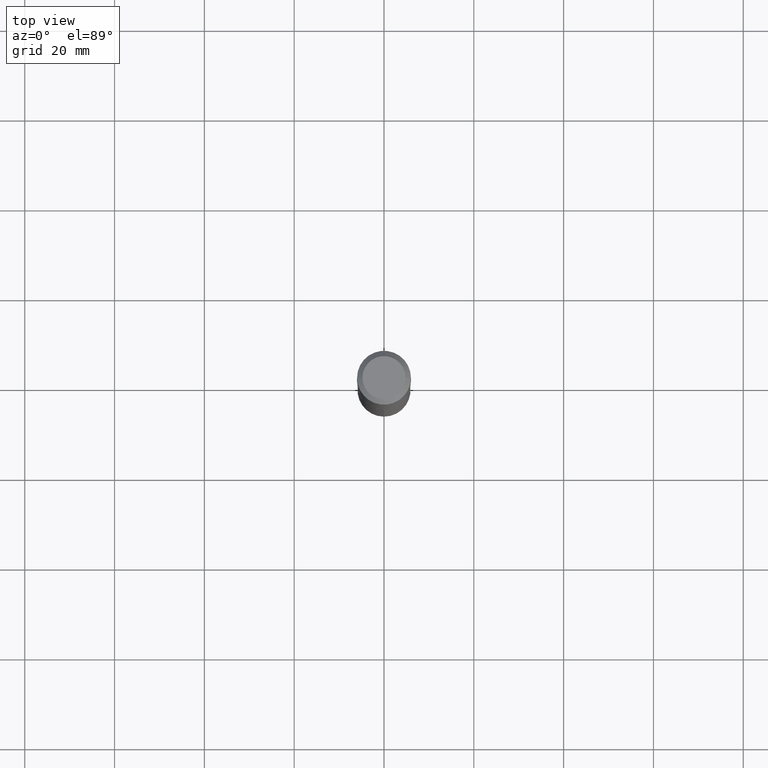
[diagram: clean part render]
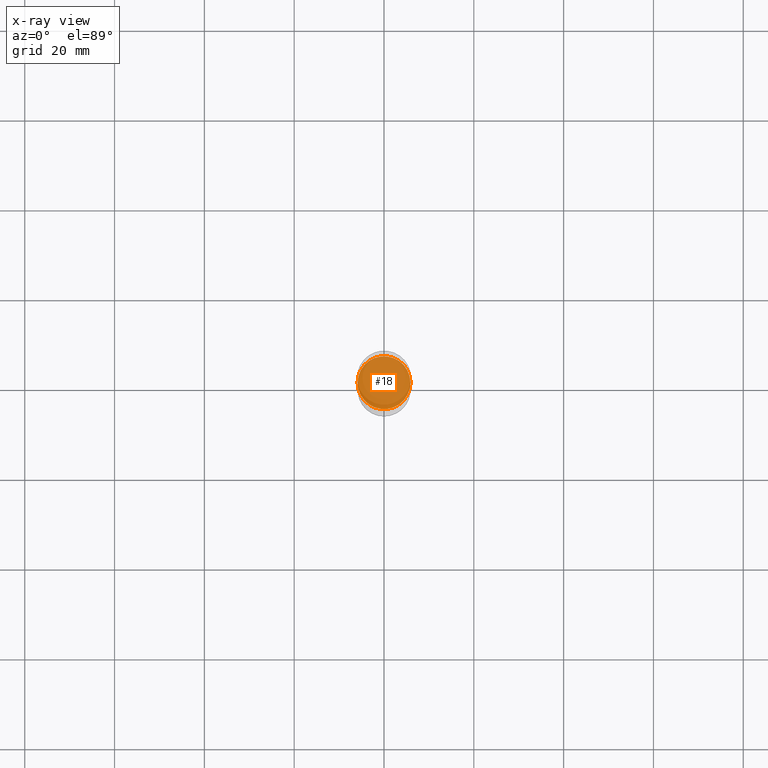
[diagram: x-ray — body ghosted, one internal face saturated and labeled with its STEP entity id]
A machine part, top view, then the same camera in x-ray: the body is ghosted and one INTERNAL B-rep face — a face not visible from any outside direction — is saturated and labeled: STEP entity #18.
In plain terms, the highlighted planar face has unit normal (-0, 0, 1).
Its self-contained STEP definition (entity closure, byte-faithful):
#18 = ADVANCED_FACE ( 'NONE', ( #377 ), #200, .F. ) ;
#28 = ORIENTED_EDGE ( 'NONE', *, *, #437, .F. ) ;
#44 = DIRECTION ( 'NONE',  ( -2.438088387897960049E-29, 3.491481338843145188E-15, 1.000000000000000000 ) ) ;
#103 = DIRECTION ( 'NONE',  ( 1.000000000000000000, -6.982962677686268288E-15, 0.000000000000000000 ) ) ;
#112 = EDGE_LOOP ( 'NONE', ( #325, #28 ) ) ;
#129 = AXIS2_PLACEMENT_3D ( 'NONE', #275, #241, #103 ) ;
#135 = CIRCLE ( 'NONE', #252, 0.2318000000000000060 ) ;
#167 = CARTESIAN_POINT ( 'NONE',  ( 0.2318000000000000060, -1.069091585953771226E-14, -2.598400000000001597 ) ) ;
#169 = CARTESIAN_POINT ( 'NONE',  ( 2.077507312330397648E-29, -1.519688446092529294E-14, -2.598400000000001597 ) ) ;
#172 = CARTESIAN_POINT ( 'NONE',  ( 6.354306145991461998E-29, -9.072265110850035778E-15, -2.598400000000001597 ) ) ;
#200 = PLANE ( 'NONE',  #319 ) ;
#204 = EDGE_CURVE ( 'NONE', #369, #226, #135, .T. ) ;
#226 = VERTEX_POINT ( 'NONE', #401 ) ;
#241 = DIRECTION ( 'NONE',  ( -2.445468806185136597E-29, 3.491481338843145583E-15, 1.000000000000000000 ) ) ;
#252 = AXIS2_PLACEMENT_3D ( 'NONE', #172, #264, #431 ) ;
#264 = DIRECTION ( 'NONE',  ( -2.445468806185136597E-29, 3.491481338843145583E-15, 1.000000000000000000 ) ) ;
#275 = CARTESIAN_POINT ( 'NONE',  ( 6.354306145991461998E-29, -9.072265110850035778E-15, -2.598400000000001597 ) ) ;
#319 = AXIS2_PLACEMENT_3D ( 'NONE', #169, #44, #472 ) ;
#325 = ORIENTED_EDGE ( 'NONE', *, *, #204, .F. ) ;
#353 = CIRCLE ( 'NONE', #129, 0.2318000000000000060 ) ;
#369 = VERTEX_POINT ( 'NONE', #167 ) ;
#377 = FACE_OUTER_BOUND ( 'NONE', #112, .T. ) ;
#401 = CARTESIAN_POINT ( 'NONE',  ( -0.2318000000000000060, -7.422577822184011514E-15, -2.598400000000001597 ) ) ;
#431 = DIRECTION ( 'NONE',  ( 1.000000000000000000, -6.982962677686268288E-15, 0.000000000000000000 ) ) ;
#437 = EDGE_CURVE ( 'NONE', #226, #369, #353, .T. ) ;
#472 = DIRECTION ( 'NONE',  ( 1.000000000000000000, -6.982962677686265922E-15, 4.876176775795935793E-29 ) ) ;